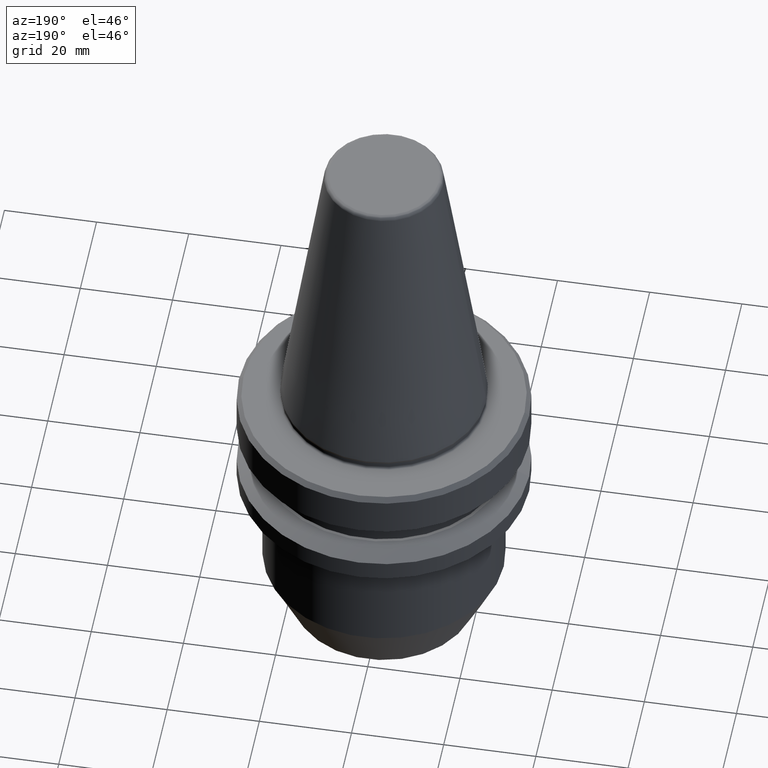
[diagram: clean part render]
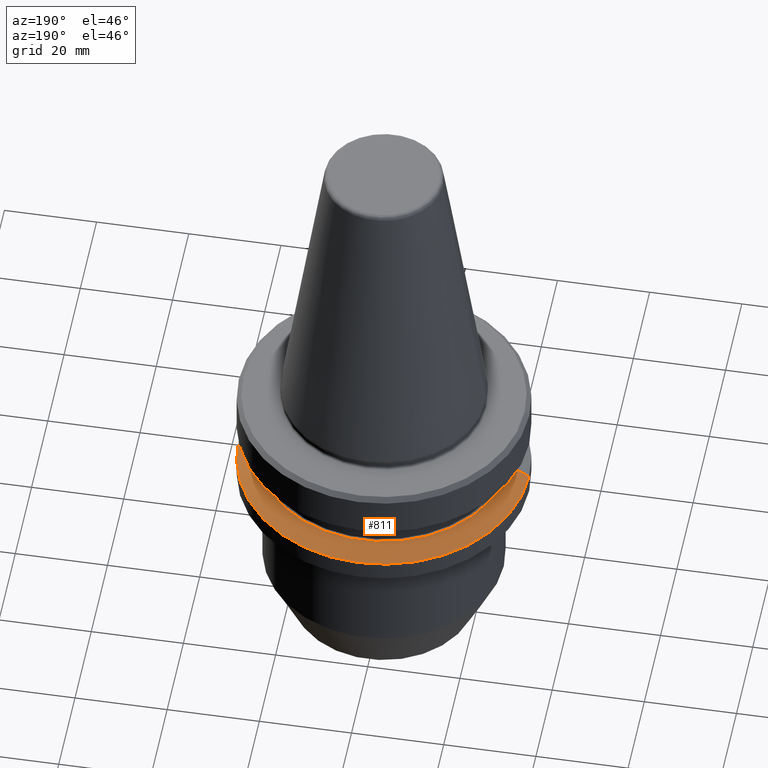
[diagram: same view with one face highlighted and labeled with its STEP entity id]
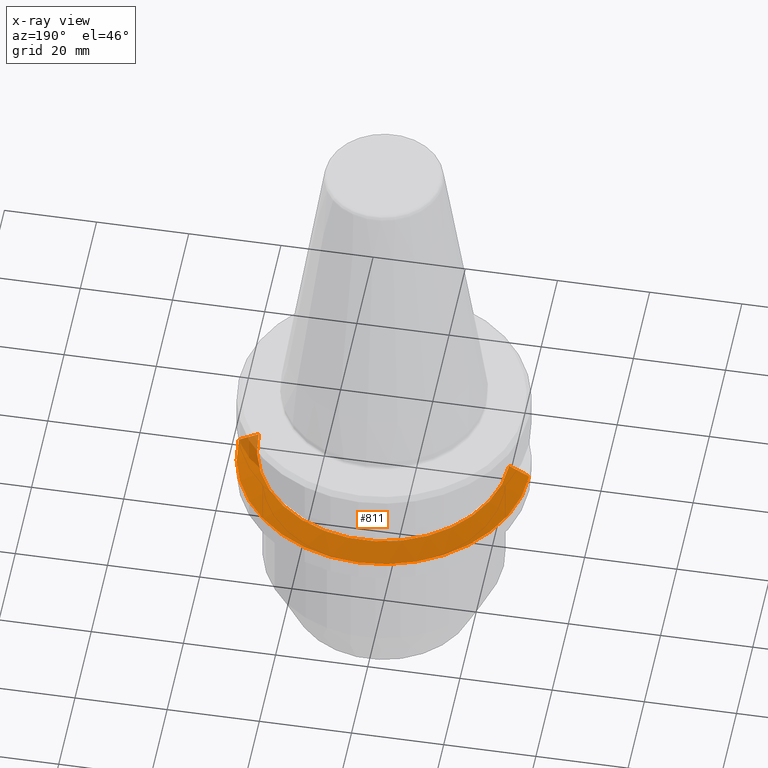
[diagram: x-ray of the same camera — body ghosted, the highlighted face saturated]
A machine part, auxiliary view. The second image highlights one B-rep face of the part: STEP entity #811.
The next image is the same camera in x-ray: the body ghosted, the highlighted face saturated — about 4% of this face is hidden behind the body in this view.
In plain terms, the highlighted conical surface has half-angle 60 deg.
Its self-contained STEP definition (entity closure, byte-faithful):
#51 = ORIENTED_EDGE ( 'NONE', *, *, #138, .F. ) ;
#56 = EDGE_CURVE ( 'NONE', #437, #927, #1050, .T. ) ;
#60 = CARTESIAN_POINT ( 'NONE',  ( -31.50000000000019500, 3.857637417314186400E-015, -20.91142879476059900 ) ) ;
#87 = EDGE_CURVE ( 'NONE', #927, #708, #932, .T. ) ;
#95 = ORIENTED_EDGE ( 'NONE', *, *, #128, .F. ) ;
#125 = CARTESIAN_POINT ( 'NONE',  ( -27.16962701892167300, 0.0000000000000000000, -18.41128678844344800 ) ) ;
#128 = EDGE_CURVE ( 'NONE', #437, #548, #1004, .T. ) ;
#138 = EDGE_CURVE ( 'NONE', #548, #708, #392, .T. ) ;
#170 = AXIS2_PLACEMENT_3D ( 'NONE', #802, #979, #487 ) ;
#192 = CARTESIAN_POINT ( 'NONE',  ( -31.50000000000019500, 0.0000000000000000000, -20.91142879476059900 ) ) ;
#259 = CARTESIAN_POINT ( 'NONE',  ( 31.50000000000019500, 3.857637417314186400E-015, -20.91142879476059900 ) ) ;
#274 = CARTESIAN_POINT ( 'NONE',  ( 0.0000000000000000000, 0.0000000000000000000, -18.41128678844344800 ) ) ;
#327 = AXIS2_PLACEMENT_3D ( 'NONE', #274, #829, #511 ) ;
#344 = AXIS2_PLACEMENT_3D ( 'NONE', #832, #911, #795 ) ;
#392 = LINE ( 'NONE', #192, #786 ) ;
#437 = VERTEX_POINT ( 'NONE', #942 ) ;
#487 = DIRECTION ( 'NONE',  ( -1.000000000000000000, 0.0000000000000000000, 0.0000000000000000000 ) ) ;
#511 = DIRECTION ( 'NONE',  ( 1.000000000000000000, 0.0000000000000000000, 0.0000000000000000000 ) ) ;
#548 = VERTEX_POINT ( 'NONE', #125 ) ;
#597 = CARTESIAN_POINT ( 'NONE',  ( 31.50000000000019500, 0.0000000000000000000, -20.91142879476059900 ) ) ;
#605 = EDGE_LOOP ( 'NONE', ( #95, #941, #815, #51 ) ) ;
#660 = DIRECTION ( 'NONE',  ( -0.8660254037844400400, 0.0000000000000000000, -0.4999999999999976100 ) ) ;
#708 = VERTEX_POINT ( 'NONE', #60 ) ;
#786 = VECTOR ( 'NONE', #660, 1000.000000000000000 ) ;
#795 = DIRECTION ( 'NONE',  ( 1.000000000000000000, 0.0000000000000000000, 0.0000000000000000000 ) ) ;
#798 = FACE_OUTER_BOUND ( 'NONE', #605, .T. ) ;
#802 = CARTESIAN_POINT ( 'NONE',  ( 0.0000000000000000000, 0.0000000000000000000, -20.91142879476059900 ) ) ;
#811 = ADVANCED_FACE ( 'NONE', ( #798 ), #981, .T. ) ;
#815 = ORIENTED_EDGE ( 'NONE', *, *, #87, .T. ) ;
#829 = DIRECTION ( 'NONE',  ( -0.0000000000000000000, -0.0000000000000000000, 1.000000000000000000 ) ) ;
#832 = CARTESIAN_POINT ( 'NONE',  ( 0.0000000000000000000, 0.0000000000000000000, -20.91142879476059900 ) ) ;
#911 = DIRECTION ( 'NONE',  ( -0.0000000000000000000, -0.0000000000000000000, 1.000000000000000000 ) ) ;
#927 = VERTEX_POINT ( 'NONE', #597 ) ;
#932 = CIRCLE ( 'NONE', #344, 31.50000000000019500 ) ;
#941 = ORIENTED_EDGE ( 'NONE', *, *, #56, .T. ) ;
#942 = CARTESIAN_POINT ( 'NONE',  ( 27.16962701892167300, 3.592478546794586600E-015, -18.41128678844344800 ) ) ;
#965 = VECTOR ( 'NONE', #1020, 1000.000000000000000 ) ;
#979 = DIRECTION ( 'NONE',  ( 0.0000000000000000000, 0.0000000000000000000, -1.000000000000000000 ) ) ;
#981 = CONICAL_SURFACE ( 'NONE', #170, 31.50000000000019500, 1.047197551196600500 ) ;
#1004 = CIRCLE ( 'NONE', #327, 27.16962701892167300 ) ;
#1020 = DIRECTION ( 'NONE',  ( 0.8660254037844400400, 1.060575238724908600E-016, -0.4999999999999976100 ) ) ;
#1050 = LINE ( 'NONE', #259, #965 ) ;